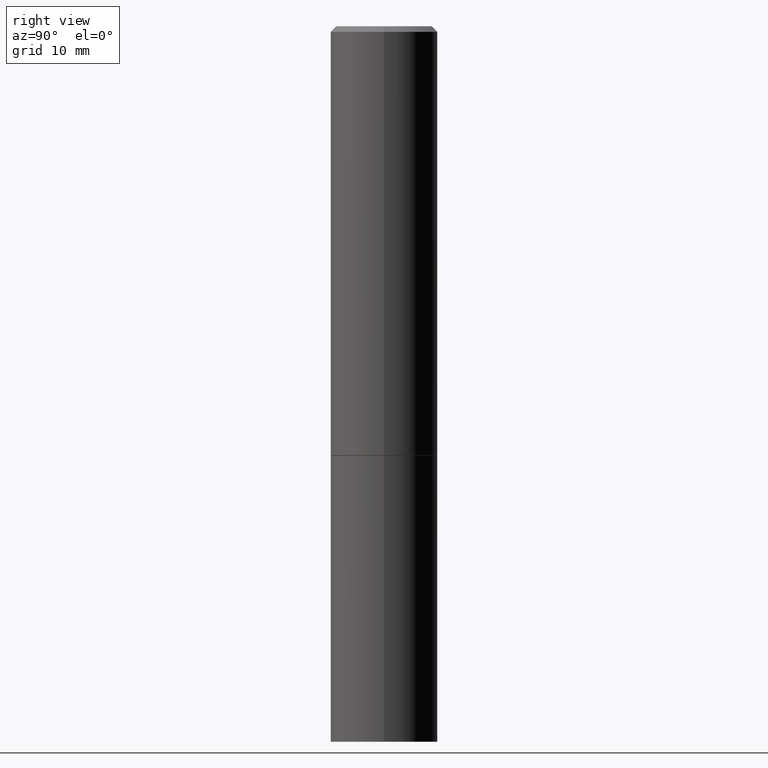
[diagram: clean part render]
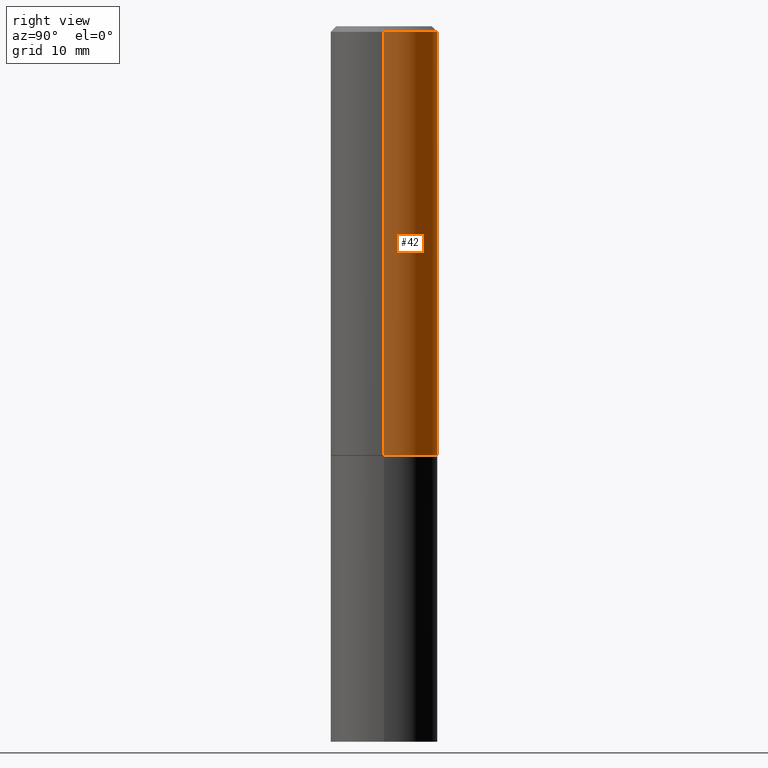
[diagram: same view with one face highlighted and labeled with its STEP entity id]
A machine part, right view. The second image highlights one B-rep face of the part: STEP entity #42.
In plain terms, the highlighted cylindrical surface (partial cylindrical patch) has radius 4.7625 mm, axis along (-0, 0, 1).
Its self-contained STEP definition (entity closure, byte-faithful):
#24 = AXIS2_PLACEMENT_3D ( 'NONE', #288, #348, #128 ) ;
#33 = CARTESIAN_POINT ( 'NONE',  ( 4.890937612370283668E-31, -6.982962677686305168E-17, -0.02000000000000004205 ) ) ;
#37 = EDGE_CURVE ( 'NONE', #284, #317, #40, .T. ) ;
#40 = LINE ( 'NONE', #243, #255 ) ;
#42 = ADVANCED_FACE ( 'NONE', ( #188 ), #97, .T. ) ;
#84 = DIRECTION ( 'NONE',  ( -2.445468806185136597E-29, 3.491481338843145583E-15, 1.000000000000000000 ) ) ;
#97 = CYLINDRICAL_SURFACE ( 'NONE', #24, 0.1874999999999999167 ) ;
#101 = LINE ( 'NONE', #267, #152 ) ;
#126 = EDGE_CURVE ( 'NONE', #160, #357, #101, .T. ) ;
#128 = DIRECTION ( 'NONE',  ( 1.000000000000000000, -6.982962677686265922E-15, 4.876176775795935793E-29 ) ) ;
#152 = VECTOR ( 'NONE', #164, 39.37007874015748143 ) ;
#160 = VERTEX_POINT ( 'NONE', #342 ) ;
#164 = DIRECTION ( 'NONE',  ( -2.445468806185136877E-29, 3.491481338843145188E-15, 1.000000000000000000 ) ) ;
#170 = DIRECTION ( 'NONE',  ( 1.000000000000000000, -6.982962677686266711E-15, 0.000000000000000000 ) ) ;
#172 = CIRCLE ( 'NONE', #325, 0.1875000000000000278 ) ;
#188 = FACE_OUTER_BOUND ( 'NONE', #258, .T. ) ;
#200 = ORIENTED_EDGE ( 'NONE', *, *, #347, .T. ) ;
#206 = DIRECTION ( 'NONE',  ( 1.000000000000000000, -6.982962677686266711E-15, 0.000000000000000000 ) ) ;
#218 = ORIENTED_EDGE ( 'NONE', *, *, #37, .T. ) ;
#243 = CARTESIAN_POINT ( 'NONE',  ( -0.1874999999999999167, 1.332267629550187257E-15, -9.223003294227943787E-30 ) ) ;
#245 = DIRECTION ( 'NONE',  ( -2.445468806185136877E-29, 3.491481338843145188E-15, 1.000000000000000000 ) ) ;
#254 = ORIENTED_EDGE ( 'NONE', *, *, #126, .F. ) ;
#255 = VECTOR ( 'NONE', #245, 39.37007874015748143 ) ;
#258 = EDGE_LOOP ( 'NONE', ( #200, #218, #263, #254 ) ) ;
#263 = ORIENTED_EDGE ( 'NONE', *, *, #309, .F. ) ;
#264 = CARTESIAN_POINT ( 'NONE',  ( -0.1874999999999999722, -1.319512447301180399E-15, -1.499000000000000110 ) ) ;
#267 = CARTESIAN_POINT ( 'NONE',  ( 0.1874999999999999167, -1.309305502066174219E-15, 9.142831454617375408E-30 ) ) ;
#274 = DIRECTION ( 'NONE',  ( -2.445468806185136597E-29, 3.491481338843145583E-15, 1.000000000000000000 ) ) ;
#284 = VERTEX_POINT ( 'NONE', #264 ) ;
#286 = CIRCLE ( 'NONE', #308, 0.1874999999999998057 ) ;
#288 = CARTESIAN_POINT ( 'NONE',  ( 0.000000000000000000, 0.000000000000000000, 0.000000000000000000 ) ) ;
#305 = CARTESIAN_POINT ( 'NONE',  ( 0.1874999999999998057, -1.356173001359023888E-15, -0.02000000000000004205 ) ) ;
#308 = AXIS2_PLACEMENT_3D ( 'NONE', #33, #84, #206 ) ;
#309 = EDGE_CURVE ( 'NONE', #357, #317, #286, .T. ) ;
#317 = VERTEX_POINT ( 'NONE', #356 ) ;
#325 = AXIS2_PLACEMENT_3D ( 'NONE', #334, #274, #170 ) ;
#334 = CARTESIAN_POINT ( 'NONE',  ( 3.665757740471519853E-29, -5.233730526925875958E-15, -1.499000000000000110 ) ) ;
#342 = CARTESIAN_POINT ( 'NONE',  ( 0.1875000000000000278, -6.543036028992050967E-15, -1.499000000000000110 ) ) ;
#347 = EDGE_CURVE ( 'NONE', #160, #284, #172, .T. ) ;
#348 = DIRECTION ( 'NONE',  ( -2.445468806185136597E-29, 3.491481338843145583E-15, 1.000000000000000000 ) ) ;
#356 = CARTESIAN_POINT ( 'NONE',  ( -0.1874999999999998057, 1.239475875289310527E-15, -0.02000000000000004205 ) ) ;
#357 = VERTEX_POINT ( 'NONE', #305 ) ;